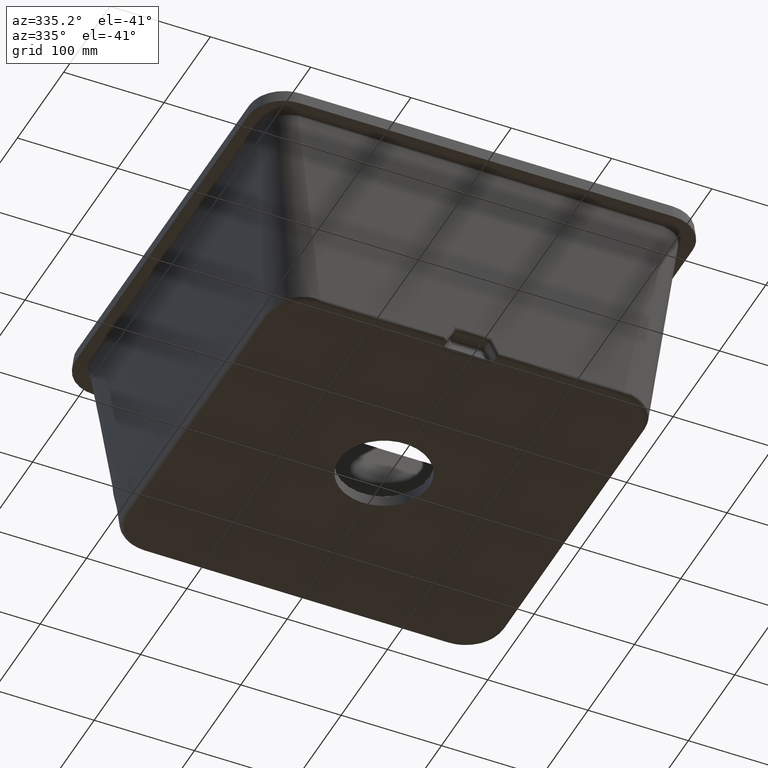
[diagram: clean part render]
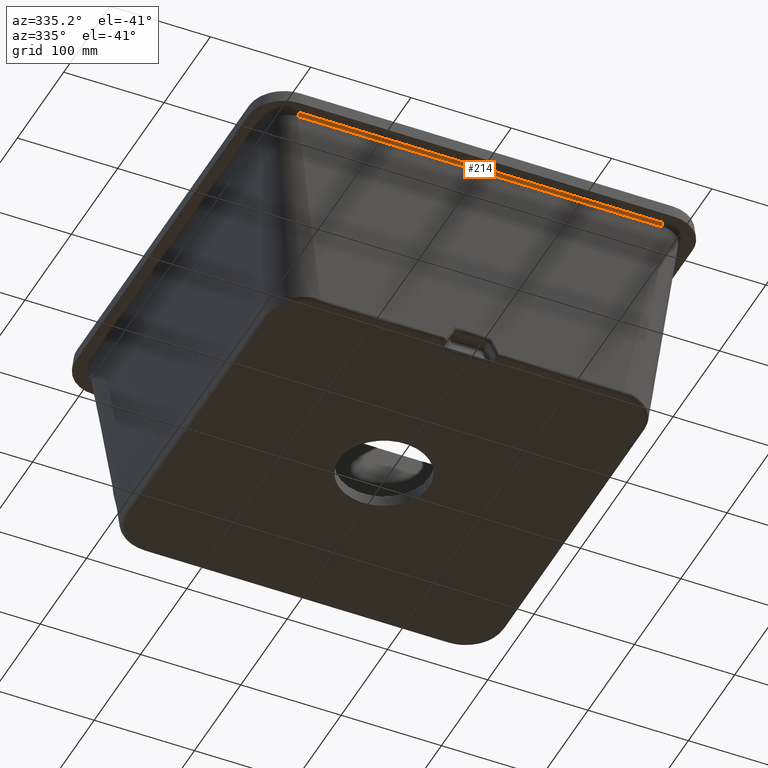
[diagram: same view with one face highlighted and labeled with its STEP entity id]
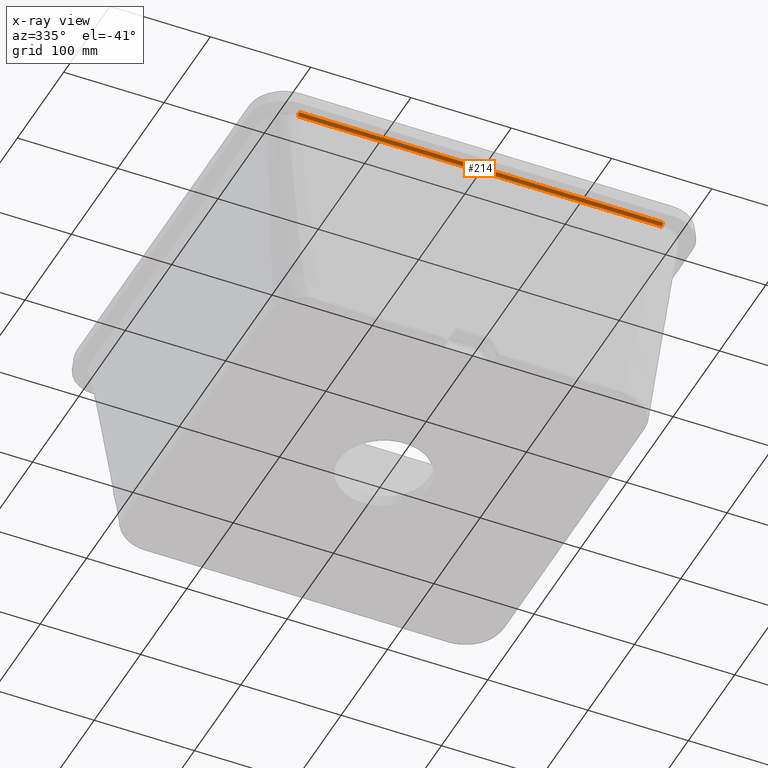
[diagram: x-ray of the same camera — body ghosted, the highlighted face saturated]
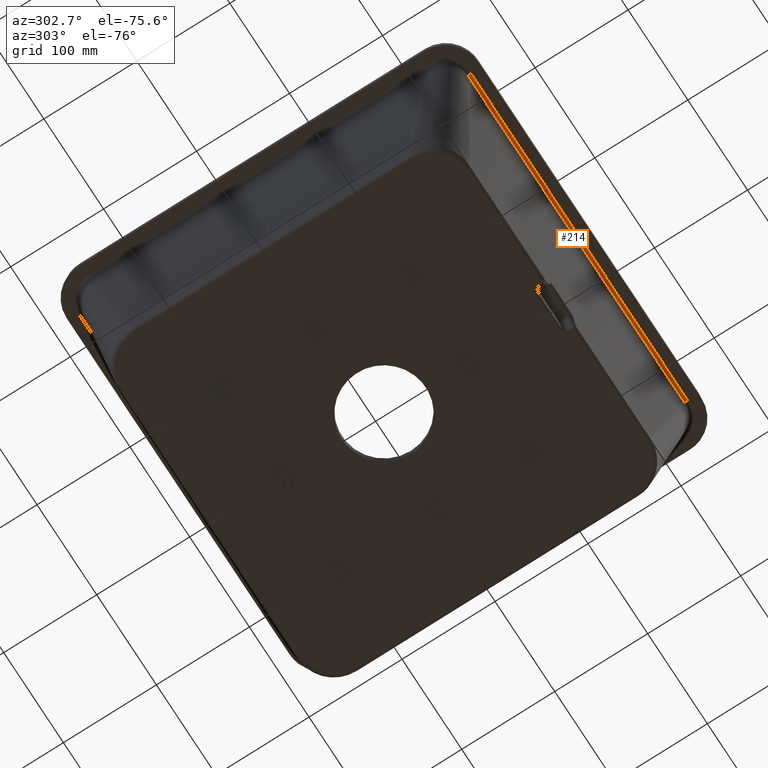
[diagram: same view with one face highlighted and labeled with its STEP entity id]
A machine part, auxiliary view. The second image highlights one B-rep face of the part: STEP entity #214.
The next image is the same camera in x-ray: the body ghosted, the highlighted face saturated — about 0% of this face is hidden behind the body in this view.
A second angle (auxiliary view) of the same face is appended — the face is thin or edge-on in the first view.
In plain terms, the highlighted cylindrical surface (edge-blend (fillet) strip) has radius 3 mm, axis along (-1, 0, 0).
Its self-contained STEP definition (entity closure, byte-faithful):
#55=CYLINDRICAL_SURFACE('',#1363,3.00000000000021);
#64=LINE('',#3484,#88);
#88=VECTOR('',#1468,1.);
#214=ADVANCED_FACE('',(#344),#55,.F.);
#344=FACE_OUTER_BOUND('',#424,.T.);
#424=EDGE_LOOP('',(#719,#720,#721,#722));
#493=CIRCLE('',#1361,3.);
#494=CIRCLE('',#1362,3.);
#719=ORIENTED_EDGE('',*,*,#1140,.F.);
#720=ORIENTED_EDGE('',*,*,#1141,.F.);
#721=ORIENTED_EDGE('',*,*,#1138,.T.);
#722=ORIENTED_EDGE('',*,*,#1122,.T.);
#963=VERTEX_POINT('',#3144);
#965=VERTEX_POINT('',#3208);
#975=VERTEX_POINT('',#3429);
#976=VERTEX_POINT('',#3483);
#1122=EDGE_CURVE('',#963,#965,#1289,.T.);
#1138=EDGE_CURVE('',#975,#963,#493,.T.);
#1140=EDGE_CURVE('',#976,#965,#494,.T.);
#1141=EDGE_CURVE('',#975,#976,#64,.T.);
#1289=B_SPLINE_CURVE_WITH_KNOTS('',3,(#3210,#3211,#3212,#3213,#3214,#3215,
#3216,#3217,#3218,#3219),.UNSPECIFIED.,.F.,.F.,(4,2,2,2,4),(0.,0.652838451080555,
0.917342488352513,0.983468497670503,1.),.UNSPECIFIED.);
#1361=AXIS2_PLACEMENT_3D('',#3428,#1464,#1465);
#1362=AXIS2_PLACEMENT_3D('',#3482,#1466,#1467);
#1363=AXIS2_PLACEMENT_3D('',#3485,#1469,#1470);
#1464=DIRECTION('',(-1.,0.,0.));
#1465=DIRECTION('',(0.,0.,-1.));
#1466=DIRECTION('',(-1.,-2.8671030144071E-14,9.25185853854323E-15));
#1467=DIRECTION('',(-2.77555756156289E-14,1.,0.));
#1468=DIRECTION('',(1.,0.,0.));
#1469=DIRECTION('',(-1.,0.,0.));
#1470=DIRECTION('',(0.,0.,1.));
#3144=CARTESIAN_POINT('',(-181.471710205494,-415.97662521934,-15.738532771757));
#3208=CARTESIAN_POINT('',(181.471710205494,-415.97662521934,-15.738532771757));
#3210=CARTESIAN_POINT('',(-181.471710205494,-415.97662521934,-15.738532771757));
#3211=CARTESIAN_POINT('',(-102.490570068498,-415.97662521934,-15.738532771757));
#3212=CARTESIAN_POINT('',(-23.5094299315017,-415.97662521934,-15.738532771757));
#3213=CARTESIAN_POINT('',(87.4717102054945,-415.97662521934,-15.738532771757));
#3214=CARTESIAN_POINT('',(119.471710205494,-415.97662521934,-15.738532771757));
#3215=CARTESIAN_POINT('',(159.471710205494,-415.97662521934,-15.738532771757));
#3216=CARTESIAN_POINT('',(167.471710205494,-415.97662521934,-15.738532771757));
#3217=CARTESIAN_POINT('',(177.471710205494,-415.97662521934,-15.738532771757));
#3218=CARTESIAN_POINT('',(179.471710205494,-415.97662521934,-15.738532771757));
#3219=CARTESIAN_POINT('',(181.471710205494,-415.97662521934,-15.738532771757));
#3428=CARTESIAN_POINT('',(-181.471710205494,-418.965209313615,-16.));
#3429=CARTESIAN_POINT('',(-181.471710205494,-418.965209313615,-13.));
#3482=CARTESIAN_POINT('',(181.471710205495,-418.965209313615,-16.0000000000001));
#3483=CARTESIAN_POINT('',(181.471710205495,-418.965209313615,-13.));
#3484=CARTESIAN_POINT('',(1.07552855510562E-13,-418.965209313615,-13.));
#3485=CARTESIAN_POINT('',(181.471710205494,-418.965209313615,-16.0000000000002));